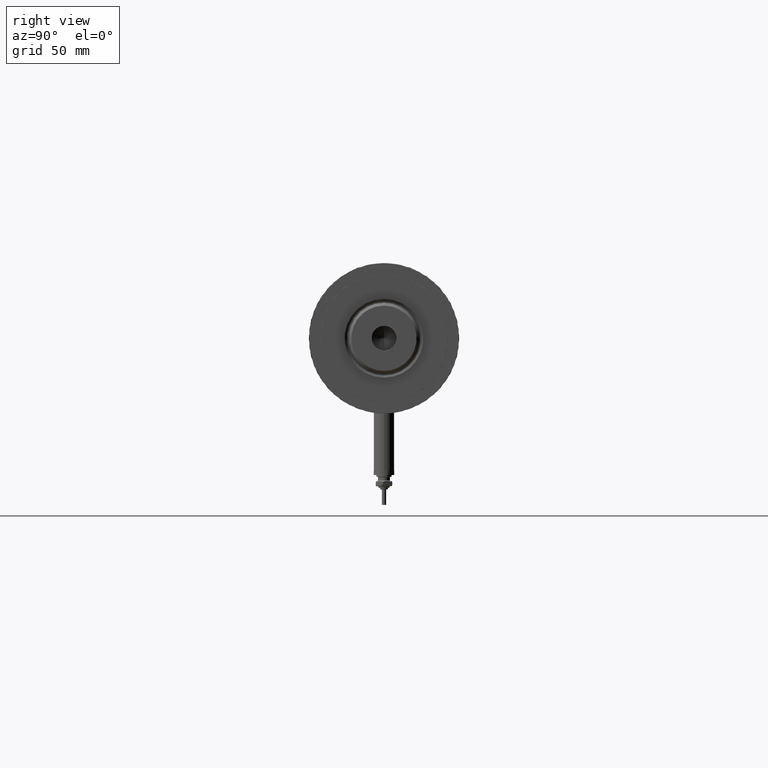
[diagram: clean part render]
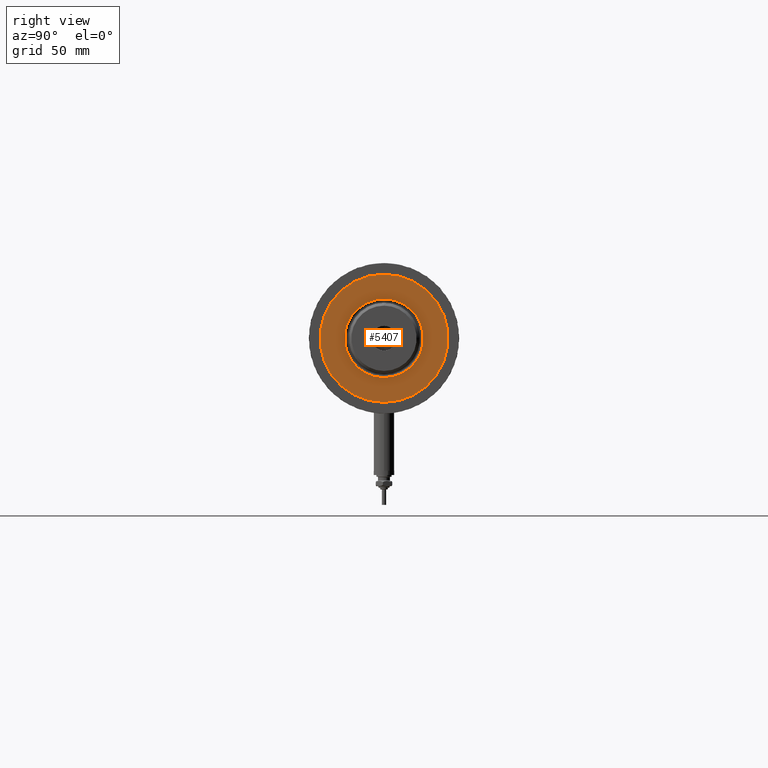
[diagram: same view with one face highlighted and labeled with its STEP entity id]
A machine part, right view. The second image highlights one B-rep face of the part: STEP entity #5407.
In plain terms, the highlighted planar face has unit normal (1, 0, -0).
Its self-contained STEP definition (entity closure, byte-faithful):
#163 = CIRCLE ( 'NONE', #3080, 23.05000000000002913 ) ;
#229 = DIRECTION ( 'NONE',  ( 0.000000000000000000, 0.000000000000000000, 1.000000000000000000 ) ) ;
#241 = ORIENTED_EDGE ( 'NONE', *, *, #1503, .T. ) ;
#329 = VERTEX_POINT ( 'NONE', #5760 ) ;
#361 = CARTESIAN_POINT ( 'NONE',  ( 0.000000000000000000, 0.000000000000000000, 59.89999999999999147 ) ) ;
#381 = EDGE_CURVE ( 'NONE', #3527, #2155, #4977, .T. ) ;
#814 = CARTESIAN_POINT ( 'NONE',  ( 23.05000000000002913, 0.000000000000000000, 59.89999999999999147 ) ) ;
#1084 = CARTESIAN_POINT ( 'NONE',  ( 0.000000000000000000, 0.000000000000000000, 59.89999999999999147 ) ) ;
#1218 = DIRECTION ( 'NONE',  ( 0.000000000000000000, 0.000000000000000000, 1.000000000000000000 ) ) ;
#1443 = AXIS2_PLACEMENT_3D ( 'NONE', #5939, #5366, #3061 ) ;
#1503 = EDGE_CURVE ( 'NONE', #2155, #3527, #163, .T. ) ;
#1521 = EDGE_LOOP ( 'NONE', ( #2251, #5311 ) ) ;
#1624 = CIRCLE ( 'NONE', #4908, 37.50000000000000711 ) ;
#2051 = EDGE_CURVE ( 'NONE', #3681, #329, #4042, .T. ) ;
#2108 = AXIS2_PLACEMENT_3D ( 'NONE', #361, #1218, #5859 ) ;
#2116 = FACE_OUTER_BOUND ( 'NONE', #1521, .T. ) ;
#2155 = VERTEX_POINT ( 'NONE', #814 ) ;
#2251 = ORIENTED_EDGE ( 'NONE', *, *, #3720, .T. ) ;
#2385 = AXIS2_PLACEMENT_3D ( 'NONE', #1084, #5218, #2524 ) ;
#2524 = DIRECTION ( 'NONE',  ( 1.000000000000000000, 0.000000000000000000, 0.000000000000000000 ) ) ;
#2617 = EDGE_LOOP ( 'NONE', ( #241, #4703 ) ) ;
#3061 = DIRECTION ( 'NONE',  ( 1.000000000000000000, 0.000000000000000000, 0.000000000000000000 ) ) ;
#3080 = AXIS2_PLACEMENT_3D ( 'NONE', #5933, #4292, #4355 ) ;
#3170 = FACE_BOUND ( 'NONE', #2617, .T. ) ;
#3527 = VERTEX_POINT ( 'NONE', #5129 ) ;
#3681 = VERTEX_POINT ( 'NONE', #3740 ) ;
#3720 = EDGE_CURVE ( 'NONE', #329, #3681, #1624, .T. ) ;
#3740 = CARTESIAN_POINT ( 'NONE',  ( 37.50000000000000711, 4.592425496802575156E-15, 59.89999999999999147 ) ) ;
#4042 = CIRCLE ( 'NONE', #1443, 37.50000000000000711 ) ;
#4292 = DIRECTION ( 'NONE',  ( -0.000000000000000000, -0.000000000000000000, -1.000000000000000000 ) ) ;
#4355 = DIRECTION ( 'NONE',  ( 1.000000000000000000, 0.000000000000000000, 0.000000000000000000 ) ) ;
#4585 = CARTESIAN_POINT ( 'NONE',  ( 0.000000000000000000, 0.000000000000000000, 59.89999999999999147 ) ) ;
#4703 = ORIENTED_EDGE ( 'NONE', *, *, #381, .T. ) ;
#4878 = PLANE ( 'NONE',  #2108 ) ;
#4908 = AXIS2_PLACEMENT_3D ( 'NONE', #4585, #229, #6001 ) ;
#4977 = CIRCLE ( 'NONE', #2385, 23.05000000000002913 ) ;
#5129 = CARTESIAN_POINT ( 'NONE',  ( -23.05000000000002913, 2.822810872034651791E-15, 59.89999999999999147 ) ) ;
#5218 = DIRECTION ( 'NONE',  ( -0.000000000000000000, -0.000000000000000000, -1.000000000000000000 ) ) ;
#5311 = ORIENTED_EDGE ( 'NONE', *, *, #2051, .T. ) ;
#5366 = DIRECTION ( 'NONE',  ( 0.000000000000000000, 0.000000000000000000, 1.000000000000000000 ) ) ;
#5407 = ADVANCED_FACE ( 'NONE', ( #3170, #2116 ), #4878, .T. ) ;
#5760 = CARTESIAN_POINT ( 'NONE',  ( -37.50000000000000711, 0.000000000000000000, 59.89999999999999147 ) ) ;
#5859 = DIRECTION ( 'NONE',  ( 1.000000000000000000, 0.000000000000000000, -0.000000000000000000 ) ) ;
#5933 = CARTESIAN_POINT ( 'NONE',  ( 0.000000000000000000, 0.000000000000000000, 59.89999999999999147 ) ) ;
#5939 = CARTESIAN_POINT ( 'NONE',  ( 0.000000000000000000, 0.000000000000000000, 59.89999999999999147 ) ) ;
#6001 = DIRECTION ( 'NONE',  ( 1.000000000000000000, 0.000000000000000000, 0.000000000000000000 ) ) ;